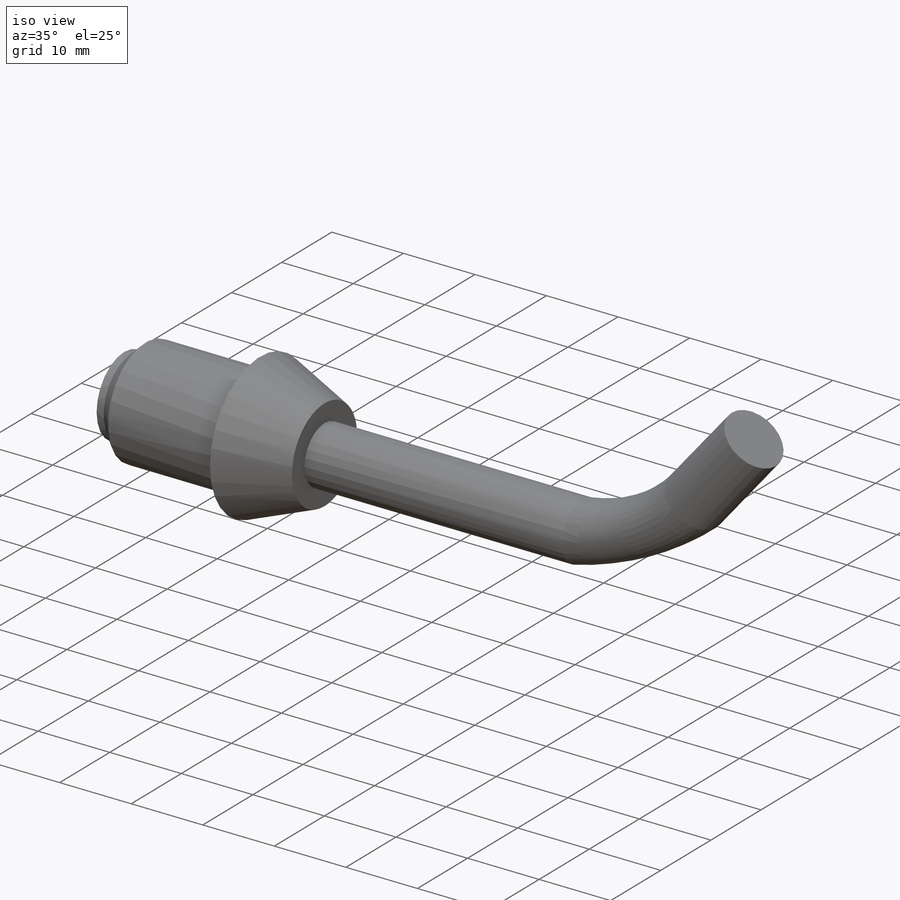
[diagram: iso view]
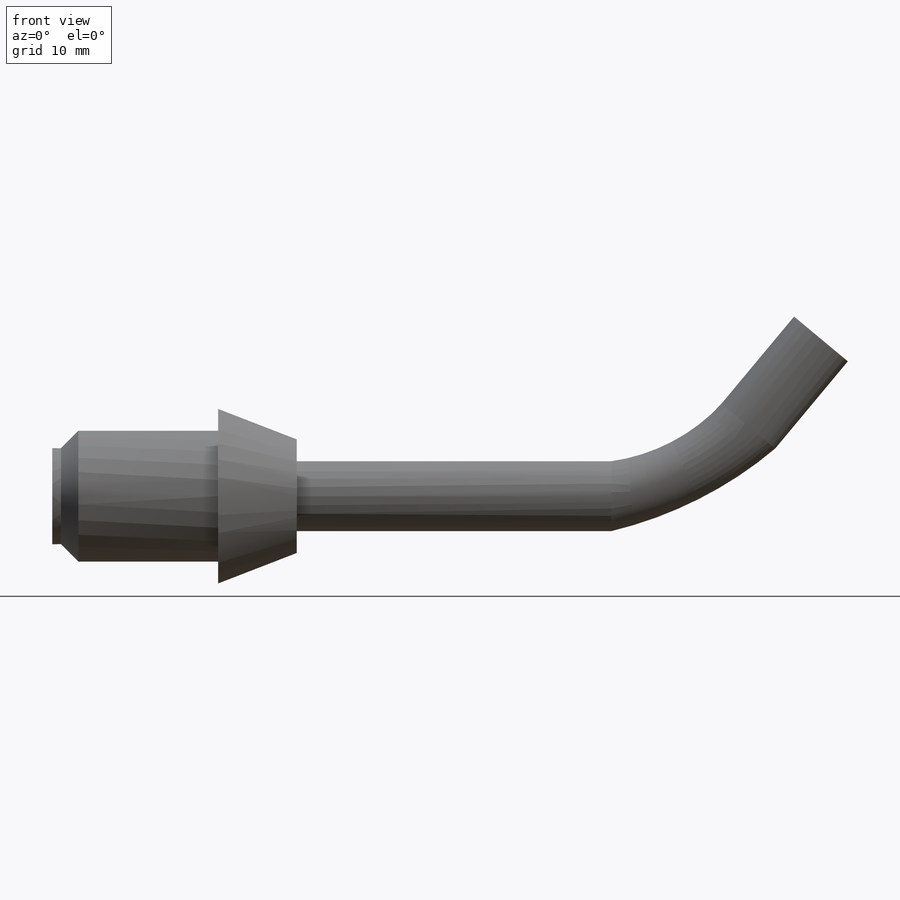
[diagram: front view]
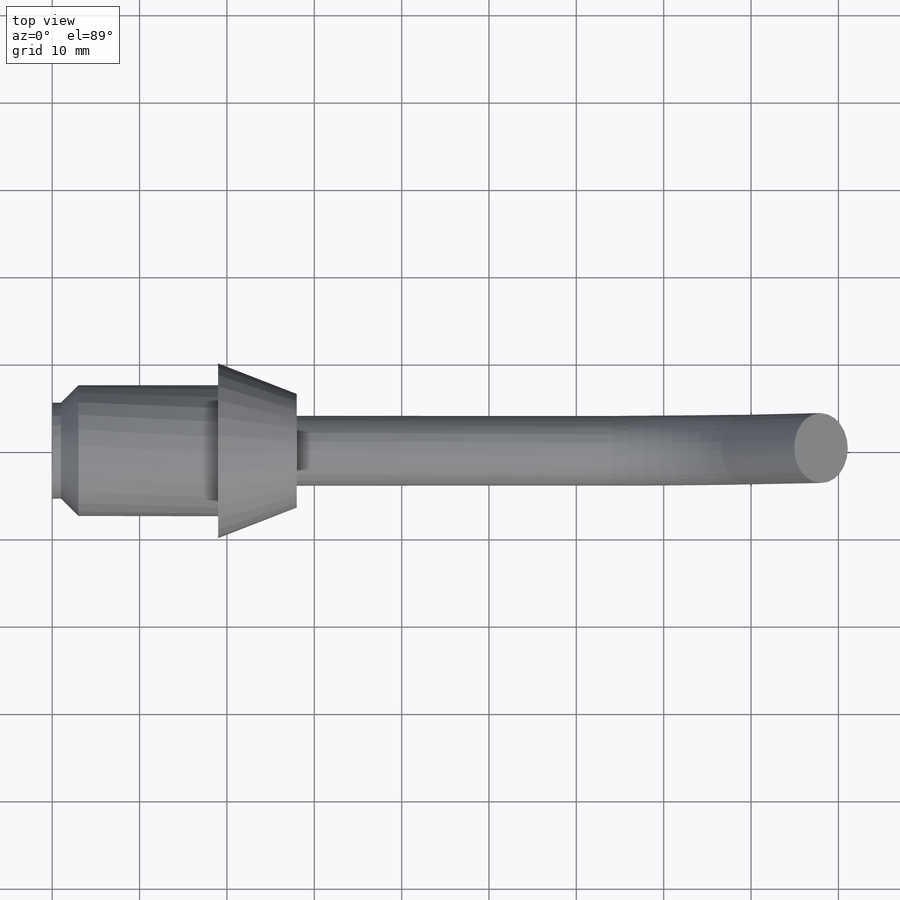
[diagram: top view]
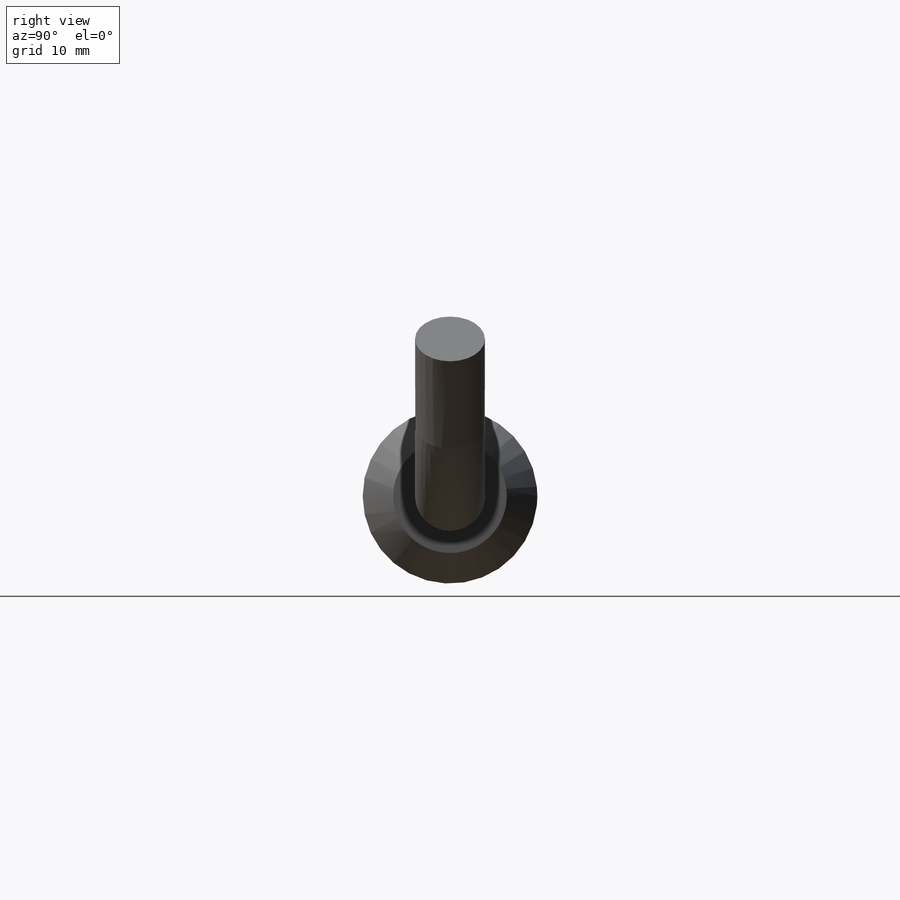
[diagram: right view]
SOLIDWORKS PART (.sldprt)
format: sldprt  version: not decoded by parser v0  size: 381,440 bytes
history: native  units: mm
features: sketch x8, extrude x4, plane x3, material x1, chamfer x1 (+8 scaffold rows collapsed)
feature tree (25):
  scaffold x8  (default folders/planes/origin — collapsed)
  material  "Materiale <non specificato>"
  plane  "Piano frontale"
  plane  "Piano superiore"
  plane  "Piano destro"
  sketch  "Schizzo1"  dims[D1=~12.740041mm]
  extrude  "Estrusione-Estrusione1"  Depth=1mm
  sketch  "Schizzo2"  dims[D1=~9.481918mm]
  extrude  "Estrusione-Estrusione2"  Depth=18mm
  chamfer  "Smusso1"  Distance=2mm Angle=45deg
  sketch  "Schizzo4"  dims[D1=~14.659099mm]
  sketch  "Schizzo3D1"  dims[c1.D2=~4.286444mm c2.D2=~4.286444mm c3.D2=13.0mm c3.D1=9.0mm]
  sketch  "Schizzo5"  dims[D1=~2.089821mm]
  extrude  "Estrusione-Estrusione3"  Depth=36mm
  sketch  "Schizzo3D3"  dims[c1.D5=~5.583391mm c2.D5=~5.583391mm c2.D1=45.0mm c2.D2=18.0mm c2.D3=15.0mm c2.D4=~23.430749mm c3.D4=~95.194429deg c3.D5=90.0deg c4.D5=18.0mm c5.D5=90.0deg c6.D5=18.0mm c7.D5=90.0deg c8.D5=18.0mm]
  extrude  "Estrusione-Estrusione4"  Depth=13mm
  sketch  "Schizzo3D6"
  sketch  "Schizzo6"
decode coverage: 11 of 13 modeling features carry decoded parameters
note: ~ marks probable driven/reference dimensions
note: suppression state not decoded; provenance and decode notes live in map.json
